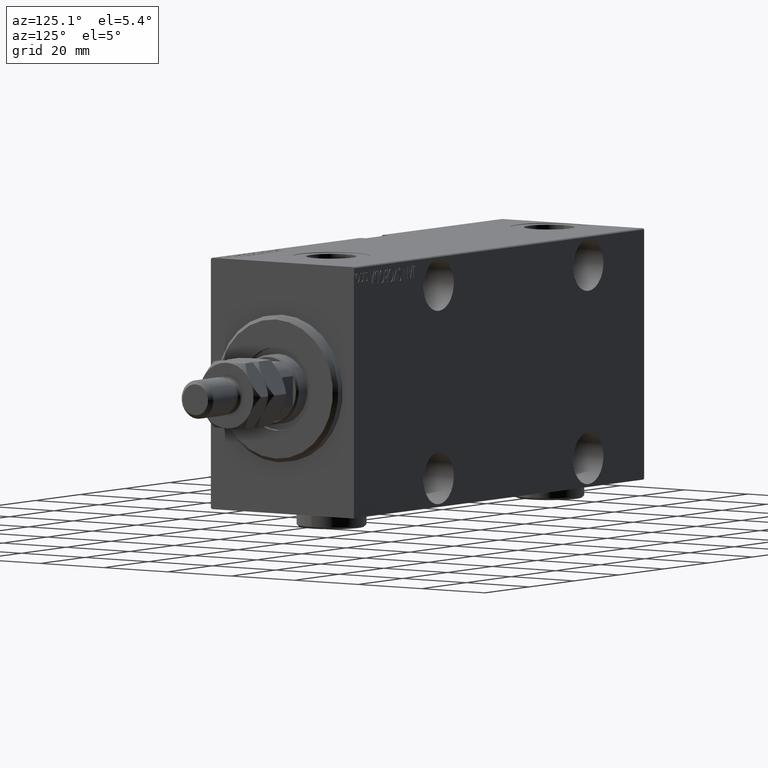
[diagram: clean part render]
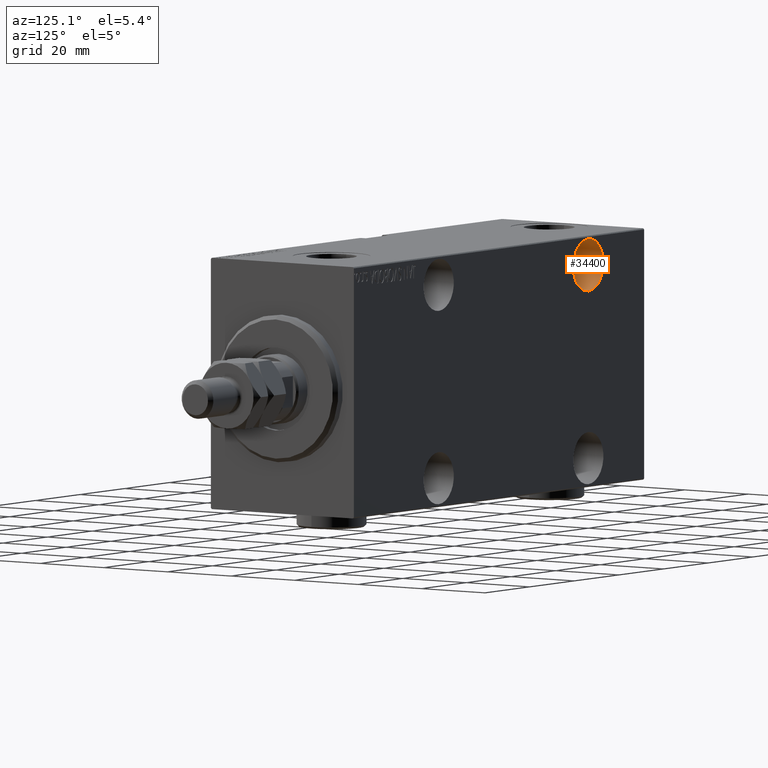
[diagram: same view with one face highlighted and labeled with its STEP entity id]
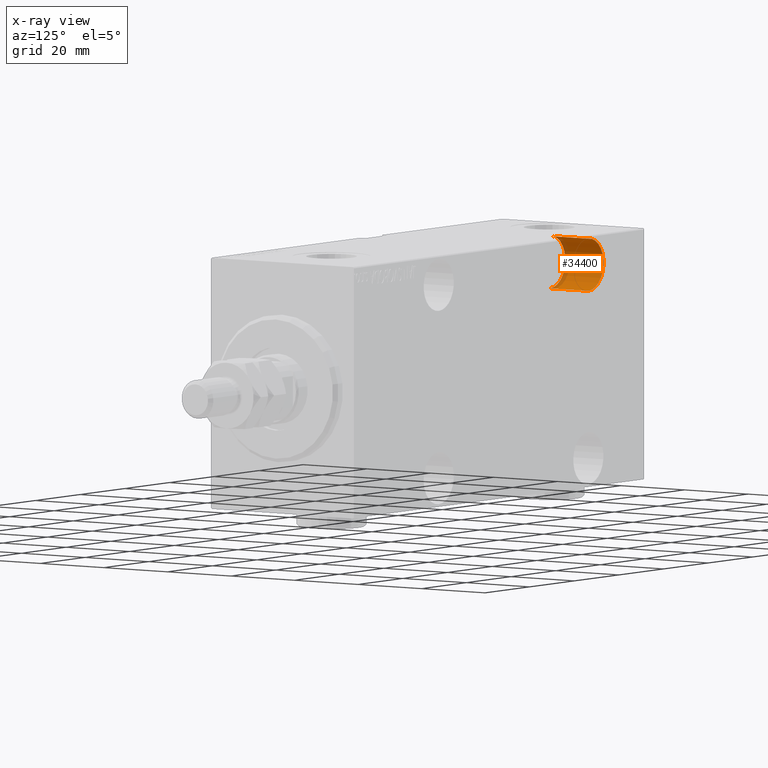
[diagram: x-ray of the same camera — body ghosted, the highlighted face saturated]
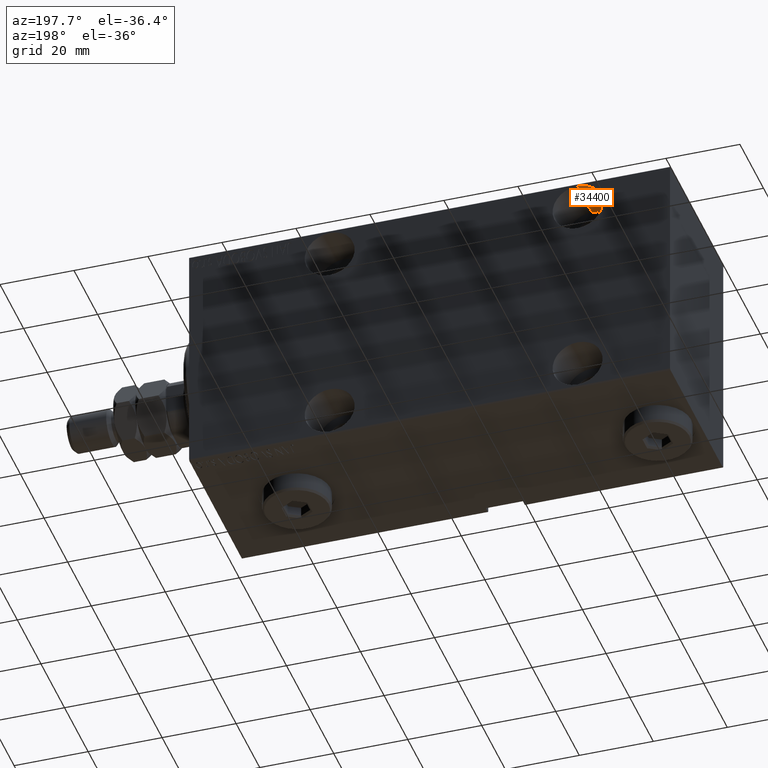
[diagram: same view with one face highlighted and labeled with its STEP entity id]
A machine part, auxiliary view. The second image highlights one B-rep face of the part: STEP entity #34400.
The next image is the same camera in x-ray: the body ghosted, the highlighted face saturated — about 11% of this face is hidden behind the body in this view.
A second angle (auxiliary view) of the same face is appended — the face is thin or edge-on in the first view.
In plain terms, the highlighted cylindrical surface (edge-blend (fillet) strip) has radius 6.75 mm, axis along (0, 1, -0).
Its self-contained STEP definition (entity closure, byte-faithful):
#1562 = VECTOR ( 'NONE', #41849, 1000.000000000000000 ) ;
#1885 = CARTESIAN_POINT ( 'NONE',  ( 105.0000000000000142, -10.49999999999999467, 18.24999999999998934 ) ) ;
#2015 = CARTESIAN_POINT ( 'NONE',  ( 105.0000000000000142, -22.49999999999999645, 18.24999999999998934 ) ) ;
#2127 = LINE ( 'NONE', #13051, #23306 ) ;
#5400 = CARTESIAN_POINT ( 'NONE',  ( 105.0000000000000142, -22.49999999999999645, 31.74999999999999289 ) ) ;
#6250 = EDGE_CURVE ( 'NONE', #31768, #17333, #2127, .T. ) ;
#6577 = ORIENTED_EDGE ( 'NONE', *, *, #37053, .F. ) ;
#10088 = AXIS2_PLACEMENT_3D ( 'NONE', #38714, #17533, #14738 ) ;
#11105 = VERTEX_POINT ( 'NONE', #1885 ) ;
#11988 = EDGE_CURVE ( 'NONE', #21771, #17333, #44286, .T. ) ;
#12681 = CARTESIAN_POINT ( 'NONE',  ( 105.0000000000000142, -10.49999999999999467, 24.99999999999998934 ) ) ;
#13051 = CARTESIAN_POINT ( 'NONE',  ( 105.0000000000000142, -10.49999999999999467, 31.74999999999999289 ) ) ;
#13284 = DIRECTION ( 'NONE',  ( -0.000000000000000000, -1.000000000000000000, -0.000000000000000000 ) ) ;
#13551 = ORIENTED_EDGE ( 'NONE', *, *, #6250, .F. ) ;
#13821 = ORIENTED_EDGE ( 'NONE', *, *, #11988, .T. ) ;
#14738 = DIRECTION ( 'NONE',  ( 0.000000000000000000, 0.000000000000000000, -1.000000000000000000 ) ) ;
#15711 = DIRECTION ( 'NONE',  ( -0.000000000000000000, -1.000000000000000000, -0.000000000000000000 ) ) ;
#15924 = CIRCLE ( 'NONE', #41936, 6.750000000000002665 ) ;
#17333 = VERTEX_POINT ( 'NONE', #5400 ) ;
#17533 = DIRECTION ( 'NONE',  ( 0.000000000000000000, -1.000000000000000000, 0.000000000000000000 ) ) ;
#20090 = EDGE_LOOP ( 'NONE', ( #13551, #6577, #36771, #13821 ) ) ;
#20211 = CARTESIAN_POINT ( 'NONE',  ( 105.0000000000000142, -10.49999999999999467, 18.24999999999998934 ) ) ;
#20884 = LINE ( 'NONE', #20211, #1562 ) ;
#21771 = VERTEX_POINT ( 'NONE', #2015 ) ;
#23306 = VECTOR ( 'NONE', #13284, 1000.000000000000000 ) ;
#23593 = AXIS2_PLACEMENT_3D ( 'NONE', #12681, #15711, #29896 ) ;
#23602 = CARTESIAN_POINT ( 'NONE',  ( 105.0000000000000142, -10.49999999999999467, 31.74999999999999289 ) ) ;
#23832 = CYLINDRICAL_SURFACE ( 'NONE', #23593, 6.750000000000002665 ) ;
#29634 = EDGE_CURVE ( 'NONE', #11105, #21771, #20884, .T. ) ;
#29896 = DIRECTION ( 'NONE',  ( 0.000000000000000000, 0.000000000000000000, -1.000000000000000000 ) ) ;
#31332 = CARTESIAN_POINT ( 'NONE',  ( 105.0000000000000142, -10.49999999999999467, 24.99999999999998934 ) ) ;
#31768 = VERTEX_POINT ( 'NONE', #23602 ) ;
#34162 = DIRECTION ( 'NONE',  ( 0.000000000000000000, 0.000000000000000000, -1.000000000000000000 ) ) ;
#34400 = ADVANCED_FACE ( 'NONE', ( #37130 ), #23832, .F. ) ;
#36771 = ORIENTED_EDGE ( 'NONE', *, *, #29634, .T. ) ;
#37053 = EDGE_CURVE ( 'NONE', #11105, #31768, #15924, .T. ) ;
#37130 = FACE_OUTER_BOUND ( 'NONE', #20090, .T. ) ;
#38714 = CARTESIAN_POINT ( 'NONE',  ( 105.0000000000000142, -22.49999999999999645, 24.99999999999998934 ) ) ;
#41155 = DIRECTION ( 'NONE',  ( 0.000000000000000000, -1.000000000000000000, 0.000000000000000000 ) ) ;
#41849 = DIRECTION ( 'NONE',  ( -0.000000000000000000, -1.000000000000000000, -0.000000000000000000 ) ) ;
#41936 = AXIS2_PLACEMENT_3D ( 'NONE', #31332, #41155, #34162 ) ;
#44286 = CIRCLE ( 'NONE', #10088, 6.750000000000002665 ) ;